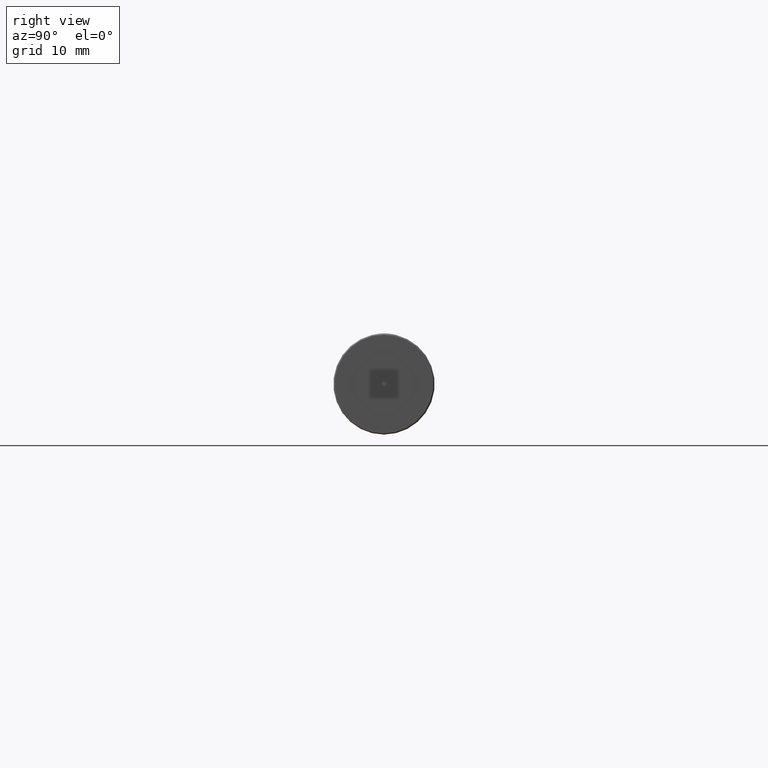
[diagram: clean part render]
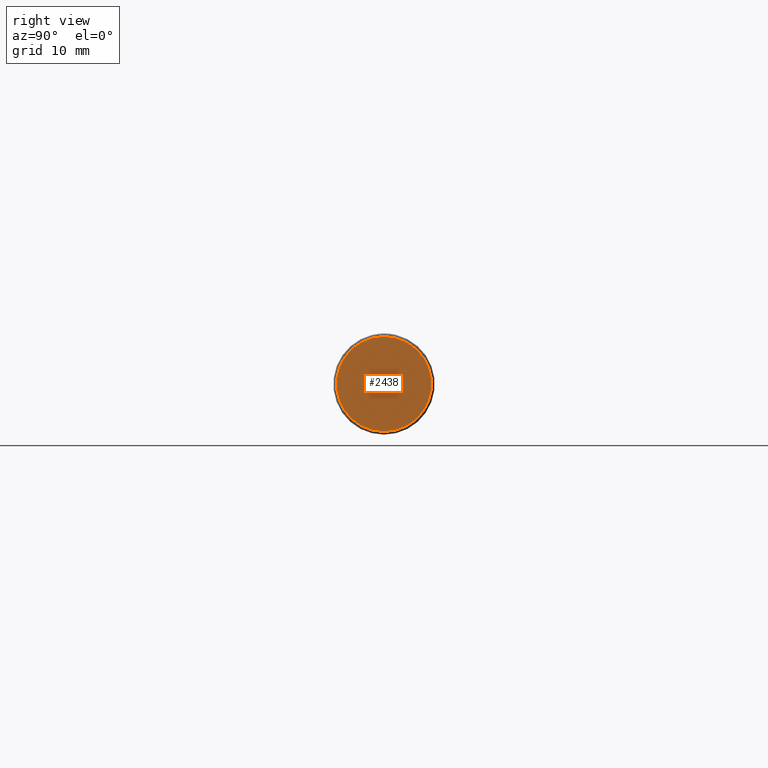
[diagram: same view with one face highlighted and labeled with its STEP entity id]
A machine part, right view. The second image highlights one B-rep face of the part: STEP entity #2438.
In plain terms, the highlighted planar face has unit normal (1, 0, 0).
Its self-contained STEP definition (entity closure, byte-faithful):
#248 = AXIS2_PLACEMENT_3D ( 'NONE', #885, #4178, #4191 ) ;
#353 = CARTESIAN_POINT ( 'NONE',  ( 28.99999999999999600, 9.491012693391987800E-016, 7.750000000000000000 ) ) ;
#444 = DIRECTION ( 'NONE',  ( 1.000000000000000000, 0.0000000000000000000, 0.0000000000000000000 ) ) ;
#455 = DIRECTION ( 'NONE',  ( 0.0000000000000000000, 0.0000000000000000000, -1.000000000000000000 ) ) ;
#658 = CIRCLE ( 'NONE', #248, 0.4150000000000000400 ) ;
#729 = VERTEX_POINT ( 'NONE', #4370 ) ;
#759 = VERTEX_POINT ( 'NONE', #353 ) ;
#885 = CARTESIAN_POINT ( 'NONE',  ( 28.99999999999999600, 0.0000000000000000000, 0.0000000000000000000 ) ) ;
#924 = DIRECTION ( 'NONE',  ( 0.0000000000000000000, 0.0000000000000000000, -1.000000000000000000 ) ) ;
#953 = AXIS2_PLACEMENT_3D ( 'NONE', #2365, #2409, #924 ) ;
#976 = EDGE_CURVE ( 'NONE', #759, #729, #1651, .T. ) ;
#1002 = EDGE_CURVE ( 'NONE', #1877, #1520, #4512, .T. ) ;
#1049 = PLANE ( 'NONE',  #3661 ) ;
#1400 = ORIENTED_EDGE ( 'NONE', *, *, #976, .T. ) ;
#1423 = CARTESIAN_POINT ( 'NONE',  ( 28.99999999999999600, 0.0000000000000000000, 0.0000000000000000000 ) ) ;
#1495 = FACE_OUTER_BOUND ( 'NONE', #3565, .T. ) ;
#1520 = VERTEX_POINT ( 'NONE', #4500 ) ;
#1607 = FACE_BOUND ( 'NONE', #2766, .T. ) ;
#1651 = CIRCLE ( 'NONE', #3776, 7.750000000000000000 ) ;
#1804 = ORIENTED_EDGE ( 'NONE', *, *, #4046, .T. ) ;
#1877 = VERTEX_POINT ( 'NONE', #4562 ) ;
#2298 = EDGE_CURVE ( 'NONE', #1520, #1877, #658, .T. ) ;
#2365 = CARTESIAN_POINT ( 'NONE',  ( 28.99999999999999600, 0.0000000000000000000, 0.0000000000000000000 ) ) ;
#2409 = DIRECTION ( 'NONE',  ( 1.000000000000000000, 0.0000000000000000000, 0.0000000000000000000 ) ) ;
#2438 = ADVANCED_FACE ( 'NONE', ( #1495, #1607 ), #1049, .T. ) ;
#2620 = ORIENTED_EDGE ( 'NONE', *, *, #1002, .F. ) ;
#2664 = CIRCLE ( 'NONE', #2934, 7.750000000000000000 ) ;
#2766 = EDGE_LOOP ( 'NONE', ( #2620, #4440 ) ) ;
#2934 = AXIS2_PLACEMENT_3D ( 'NONE', #3053, #4174, #3446 ) ;
#3053 = CARTESIAN_POINT ( 'NONE',  ( 28.99999999999999600, 0.0000000000000000000, 0.0000000000000000000 ) ) ;
#3290 = DIRECTION ( 'NONE',  ( 0.0000000000000000000, 0.0000000000000000000, -1.000000000000000000 ) ) ;
#3446 = DIRECTION ( 'NONE',  ( 0.0000000000000000000, 0.0000000000000000000, -1.000000000000000000 ) ) ;
#3565 = EDGE_LOOP ( 'NONE', ( #1804, #1400 ) ) ;
#3661 = AXIS2_PLACEMENT_3D ( 'NONE', #1423, #4372, #3290 ) ;
#3776 = AXIS2_PLACEMENT_3D ( 'NONE', #3813, #444, #455 ) ;
#3813 = CARTESIAN_POINT ( 'NONE',  ( 28.99999999999999600, 0.0000000000000000000, 0.0000000000000000000 ) ) ;
#4046 = EDGE_CURVE ( 'NONE', #729, #759, #2664, .T. ) ;
#4174 = DIRECTION ( 'NONE',  ( 1.000000000000000000, 0.0000000000000000000, 0.0000000000000000000 ) ) ;
#4178 = DIRECTION ( 'NONE',  ( 1.000000000000000000, 0.0000000000000000000, 0.0000000000000000000 ) ) ;
#4191 = DIRECTION ( 'NONE',  ( 0.0000000000000000000, 0.0000000000000000000, -1.000000000000000000 ) ) ;
#4370 = CARTESIAN_POINT ( 'NONE',  ( 28.99999999999999600, 0.0000000000000000000, -7.750000000000000000 ) ) ;
#4372 = DIRECTION ( 'NONE',  ( 1.000000000000000000, 0.0000000000000000000, 0.0000000000000000000 ) ) ;
#4440 = ORIENTED_EDGE ( 'NONE', *, *, #2298, .F. ) ;
#4500 = CARTESIAN_POINT ( 'NONE',  ( 28.99999999999999600, 5.082284216461516300E-017, -0.4150000000000000400 ) ) ;
#4512 = CIRCLE ( 'NONE', #953, 0.4150000000000000400 ) ;
#4562 = CARTESIAN_POINT ( 'NONE',  ( 28.99999999999999600, 0.0000000000000000000, 0.4150000000000000400 ) ) ;